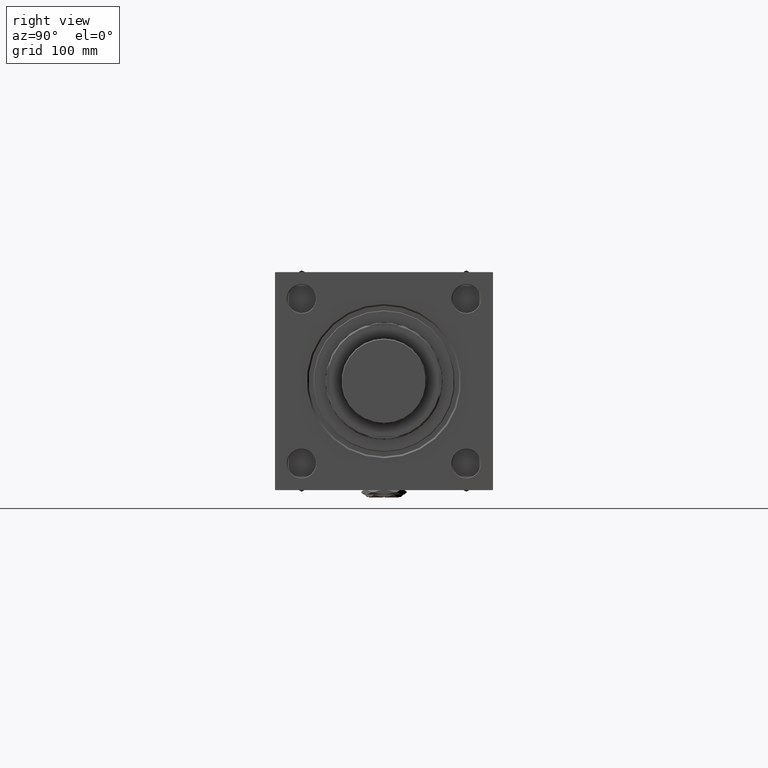
[diagram: clean part render]
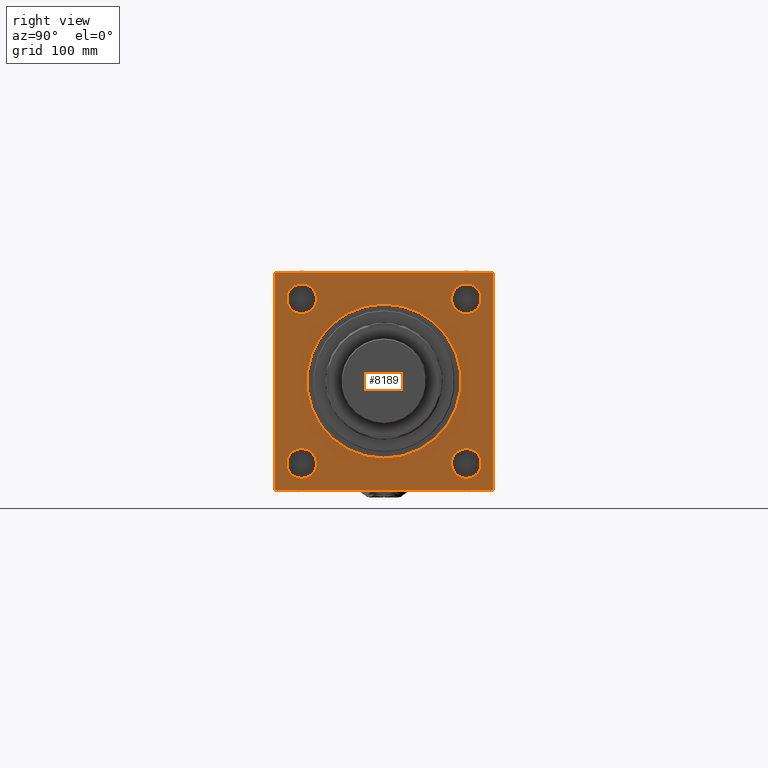
[diagram: same view with one face highlighted and labeled with its STEP entity id]
A machine part, right view. The second image highlights one B-rep face of the part: STEP entity #8189.
In plain terms, the highlighted planar face has unit normal (-1, 0, 0).
Its self-contained STEP definition (entity closure, byte-faithful):
#176 = EDGE_CURVE ( 'NONE', #10306, #6290, #25373, .T. ) ;
#322 = LINE ( 'NONE', #31910, #40194 ) ;
#452 = EDGE_LOOP ( 'NONE', ( #2316, #43651 ) ) ;
#486 = CIRCLE ( 'NONE', #51790, 13.99999999999995737 ) ;
#920 = VECTOR ( 'NONE', #41159, 1000.000000000000114 ) ;
#938 = CARTESIAN_POINT ( 'NONE',  ( 461.0000000000000000, 0.000000000000000000, 0.000000000000000000 ) ) ;
#1329 = DIRECTION ( 'NONE',  ( 0.000000000000000000, 0.000000000000000000, 1.000000000000000000 ) ) ;
#1713 = CARTESIAN_POINT ( 'NONE',  ( 461.0000000000000000, 77.44999999999998863, -77.45000000000001705 ) ) ;
#1892 = VERTEX_POINT ( 'NONE', #30097 ) ;
#2193 = CIRCLE ( 'NONE', #4779, 72.50000000000001421 ) ;
#2316 = ORIENTED_EDGE ( 'NONE', *, *, #31638, .T. ) ;
#2326 = CARTESIAN_POINT ( 'NONE',  ( 461.0000000000000000, -101.9999999999999858, -102.5000000000000284 ) ) ;
#2825 = ORIENTED_EDGE ( 'NONE', *, *, #3792, .T. ) ;
#3666 = VERTEX_POINT ( 'NONE', #40396 ) ;
#3792 = EDGE_CURVE ( 'NONE', #41597, #23987, #49764, .T. ) ;
#3818 = CARTESIAN_POINT ( 'NONE',  ( 461.0000000000000000, 0.000000000000000000, -72.50000000000001421 ) ) ;
#4104 = FACE_BOUND ( 'NONE', #13557, .T. ) ;
#4193 = VECTOR ( 'NONE', #28605, 1000.000000000000000 ) ;
#4495 = CARTESIAN_POINT ( 'NONE',  ( 461.0000000000000000, -77.45000000000005969, -91.45000000000013074 ) ) ;
#4629 = DIRECTION ( 'NONE',  ( 0.000000000000000000, 0.000000000000000000, 1.000000000000000000 ) ) ;
#4779 = AXIS2_PLACEMENT_3D ( 'NONE', #938, #13769, #45401 ) ;
#4821 = CARTESIAN_POINT ( 'NONE',  ( 461.0000000000000000, 77.44999999999998863, 77.45000000000001705 ) ) ;
#4843 = DIRECTION ( 'NONE',  ( 0.000000000000000000, 0.000000000000000000, 1.000000000000000000 ) ) ;
#4887 = FACE_BOUND ( 'NONE', #38222, .T. ) ;
#5149 = PLANE ( 'NONE',  #44395 ) ;
#5155 = CARTESIAN_POINT ( 'NONE',  ( 461.0000000000000000, -77.44999999999998863, 77.45000000000000284 ) ) ;
#6021 = VERTEX_POINT ( 'NONE', #41291 ) ;
#6290 = VERTEX_POINT ( 'NONE', #39896 ) ;
#6312 = VERTEX_POINT ( 'NONE', #34279 ) ;
#6405 = CARTESIAN_POINT ( 'NONE',  ( 461.0000000000000000, 102.5000000000000142, -102.0000000000000142 ) ) ;
#6594 = DIRECTION ( 'NONE',  ( 0.000000000000000000, 0.000000000000000000, -1.000000000000000000 ) ) ;
#6974 = ORIENTED_EDGE ( 'NONE', *, *, #46015, .T. ) ;
#7499 = CARTESIAN_POINT ( 'NONE',  ( 461.0000000000000000, -77.45000000000005969, -77.45000000000000284 ) ) ;
#7512 = AXIS2_PLACEMENT_3D ( 'NONE', #29111, #9043, #50546 ) ;
#8110 = FACE_BOUND ( 'NONE', #52007, .T. ) ;
#8189 = ADVANCED_FACE ( 'NONE', ( #4887, #4104, #12915, #8110, #9162, #49084 ), #5149, .F. ) ;
#8753 = CARTESIAN_POINT ( 'NONE',  ( 461.0000000000000000, 77.44999999999998863, 91.45000000000014495 ) ) ;
#8902 = VERTEX_POINT ( 'NONE', #47704 ) ;
#9043 = DIRECTION ( 'NONE',  ( -1.000000000000000000, 0.000000000000000000, 0.000000000000000000 ) ) ;
#9162 = FACE_BOUND ( 'NONE', #452, .T. ) ;
#9210 = EDGE_CURVE ( 'NONE', #1892, #45771, #15361, .T. ) ;
#9696 = DIRECTION ( 'NONE',  ( 0.000000000000000000, 0.000000000000000000, 1.000000000000000000 ) ) ;
#10306 = VERTEX_POINT ( 'NONE', #28613 ) ;
#10357 = CARTESIAN_POINT ( 'NONE',  ( 461.0000000000000000, 102.0000000000000142, 102.5000000000000142 ) ) ;
#10391 = AXIS2_PLACEMENT_3D ( 'NONE', #41251, #38018, #1329 ) ;
#10429 = DIRECTION ( 'NONE',  ( -0.000000000000000000, -0.7071067811865573427, -0.7071067811865376918 ) ) ;
#12267 = VERTEX_POINT ( 'NONE', #4495 ) ;
#12422 = LINE ( 'NONE', #15646, #21475 ) ;
#12706 = VECTOR ( 'NONE', #10429, 1000.000000000000114 ) ;
#12915 = FACE_BOUND ( 'NONE', #52400, .T. ) ;
#13096 = EDGE_CURVE ( 'NONE', #45771, #1892, #24040, .T. ) ;
#13557 = EDGE_LOOP ( 'NONE', ( #36745, #25536 ) ) ;
#13769 = DIRECTION ( 'NONE',  ( -1.000000000000000000, 0.000000000000000000, 0.000000000000000000 ) ) ;
#14408 = EDGE_CURVE ( 'NONE', #46432, #6021, #27189, .T. ) ;
#14414 = VERTEX_POINT ( 'NONE', #10357 ) ;
#14546 = ORIENTED_EDGE ( 'NONE', *, *, #18208, .T. ) ;
#15361 = CIRCLE ( 'NONE', #51265, 14.00000000000012434 ) ;
#15387 = CARTESIAN_POINT ( 'NONE',  ( 461.0000000000000000, -102.5000000000000000, -102.0000000000000284 ) ) ;
#15610 = ORIENTED_EDGE ( 'NONE', *, *, #14408, .F. ) ;
#15646 = CARTESIAN_POINT ( 'NONE',  ( 461.0000000000000000, 102.5000000000000142, 102.5000000000000142 ) ) ;
#16144 = ORIENTED_EDGE ( 'NONE', *, *, #13096, .T. ) ;
#16441 = DIRECTION ( 'NONE',  ( 0.000000000000000000, -1.000000000000000000, -1.353930517835556973E-16 ) ) ;
#16878 = CARTESIAN_POINT ( 'NONE',  ( 461.0000000000000000, 77.44999999999998863, 77.45000000000001705 ) ) ;
#17003 = VERTEX_POINT ( 'NONE', #3818 ) ;
#17424 = ORIENTED_EDGE ( 'NONE', *, *, #27067, .T. ) ;
#18208 = EDGE_CURVE ( 'NONE', #44506, #12267, #21686, .T. ) ;
#18611 = EDGE_LOOP ( 'NONE', ( #2825, #29338, #47809, #27563, #15610, #28535, #6974, #29221 ) ) ;
#19189 = CIRCLE ( 'NONE', #36312, 14.00000000000012434 ) ;
#19220 = EDGE_CURVE ( 'NONE', #12267, #44506, #33478, .T. ) ;
#20042 = LINE ( 'NONE', #44435, #4193 ) ;
#20686 = EDGE_CURVE ( 'NONE', #46432, #14414, #25064, .T. ) ;
#20816 = DIRECTION ( 'NONE',  ( 0.000000000000000000, -1.353930517835556727E-16, -1.000000000000000000 ) ) ;
#21133 = DIRECTION ( 'NONE',  ( -1.000000000000000000, 0.000000000000000000, 0.000000000000000000 ) ) ;
#21475 = VECTOR ( 'NONE', #16441, 1000.000000000000000 ) ;
#21522 = DIRECTION ( 'NONE',  ( 0.000000000000000000, 0.000000000000000000, 1.000000000000000000 ) ) ;
#21686 = CIRCLE ( 'NONE', #28531, 14.00000000000012434 ) ;
#22445 = VERTEX_POINT ( 'NONE', #40420 ) ;
#23819 = DIRECTION ( 'NONE',  ( 0.000000000000000000, 0.000000000000000000, 1.000000000000000000 ) ) ;
#23987 = VERTEX_POINT ( 'NONE', #15387 ) ;
#24040 = CIRCLE ( 'NONE', #25751, 14.00000000000012434 ) ;
#25064 = LINE ( 'NONE', #33367, #920 ) ;
#25373 = CIRCLE ( 'NONE', #39075, 13.99999999999995737 ) ;
#25387 = CARTESIAN_POINT ( 'NONE',  ( 461.0000000000000000, 102.5000000000000142, 102.0000000000000142 ) ) ;
#25536 = ORIENTED_EDGE ( 'NONE', *, *, #32089, .T. ) ;
#25617 = CARTESIAN_POINT ( 'NONE',  ( 461.0000000000000000, -102.4999999999999716, 102.4999999999999858 ) ) ;
#25751 = AXIS2_PLACEMENT_3D ( 'NONE', #4821, #21133, #33459 ) ;
#27067 = EDGE_CURVE ( 'NONE', #22445, #3666, #46489, .T. ) ;
#27189 = LINE ( 'NONE', #31747, #35203 ) ;
#27539 = CARTESIAN_POINT ( 'NONE',  ( 461.0000000000000000, -102.4999999999999716, 101.9999999999999289 ) ) ;
#27563 = ORIENTED_EDGE ( 'NONE', *, *, #42050, .T. ) ;
#28314 = ORIENTED_EDGE ( 'NONE', *, *, #19220, .T. ) ;
#28531 = AXIS2_PLACEMENT_3D ( 'NONE', #7499, #28632, #23819 ) ;
#28535 = ORIENTED_EDGE ( 'NONE', *, *, #20686, .T. ) ;
#28605 = DIRECTION ( 'NONE',  ( 0.000000000000000000, -1.000000000000000000, -1.353930517835556727E-16 ) ) ;
#28613 = CARTESIAN_POINT ( 'NONE',  ( 461.0000000000000000, -77.44999999999998863, 63.45000000000004547 ) ) ;
#28632 = DIRECTION ( 'NONE',  ( -1.000000000000000000, 0.000000000000000000, 0.000000000000000000 ) ) ;
#29111 = CARTESIAN_POINT ( 'NONE',  ( 461.0000000000000000, 0.000000000000000000, 0.000000000000000000 ) ) ;
#29221 = ORIENTED_EDGE ( 'NONE', *, *, #42947, .T. ) ;
#29338 = ORIENTED_EDGE ( 'NONE', *, *, #49911, .T. ) ;
#29771 = VECTOR ( 'NONE', #31537, 1000.000000000000114 ) ;
#29787 = EDGE_CURVE ( 'NONE', #3666, #22445, #19189, .T. ) ;
#30097 = CARTESIAN_POINT ( 'NONE',  ( 461.0000000000000000, 77.44999999999998863, 63.44999999999989626 ) ) ;
#30592 = DIRECTION ( 'NONE',  ( -1.000000000000000000, 0.000000000000000000, 0.000000000000000000 ) ) ;
#31037 = AXIS2_PLACEMENT_3D ( 'NONE', #1713, #30592, #50729 ) ;
#31408 = CIRCLE ( 'NONE', #7512, 72.50000000000001421 ) ;
#31537 = DIRECTION ( 'NONE',  ( -0.000000000000000000, 0.7071067811865474617, 0.7071067811865474617 ) ) ;
#31638 = EDGE_CURVE ( 'NONE', #17003, #50505, #2193, .T. ) ;
#31747 = CARTESIAN_POINT ( 'NONE',  ( 461.0000000000000000, 102.5000000000000142, 102.5000000000000142 ) ) ;
#31910 = CARTESIAN_POINT ( 'NONE',  ( 461.0000000000000000, -101.9999999999999858, -102.5000000000000284 ) ) ;
#32089 = EDGE_CURVE ( 'NONE', #6290, #10306, #486, .T. ) ;
#32786 = CARTESIAN_POINT ( 'NONE',  ( 461.0000000000000000, -77.44999999999998863, 77.45000000000000284 ) ) ;
#32986 = DIRECTION ( 'NONE',  ( -1.000000000000000000, 0.000000000000000000, 0.000000000000000000 ) ) ;
#33206 = DIRECTION ( 'NONE',  ( -1.000000000000000000, 0.000000000000000000, 0.000000000000000000 ) ) ;
#33367 = CARTESIAN_POINT ( 'NONE',  ( 461.0000000000000000, 102.0000000000000142, 102.5000000000000142 ) ) ;
#33459 = DIRECTION ( 'NONE',  ( 0.000000000000000000, 0.000000000000000000, 1.000000000000000000 ) ) ;
#33478 = CIRCLE ( 'NONE', #10391, 14.00000000000012434 ) ;
#34091 = CARTESIAN_POINT ( 'NONE',  ( 461.0000000000000000, 77.44999999999998863, -77.45000000000001705 ) ) ;
#34279 = CARTESIAN_POINT ( 'NONE',  ( 461.0000000000000000, -101.9999999999999005, 102.4999999999999858 ) ) ;
#35203 = VECTOR ( 'NONE', #6594, 1000.000000000000000 ) ;
#36083 = ORIENTED_EDGE ( 'NONE', *, *, #9210, .T. ) ;
#36312 = AXIS2_PLACEMENT_3D ( 'NONE', #34091, #46945, #21522 ) ;
#36561 = DIRECTION ( 'NONE',  ( 0.000000000000000000, 0.000000000000000000, 1.000000000000000000 ) ) ;
#36745 = ORIENTED_EDGE ( 'NONE', *, *, #176, .T. ) ;
#37266 = ORIENTED_EDGE ( 'NONE', *, *, #29787, .T. ) ;
#37566 = CARTESIAN_POINT ( 'NONE',  ( 461.0000000000000000, -102.4999999999999716, 101.9999999999999289 ) ) ;
#38018 = DIRECTION ( 'NONE',  ( -1.000000000000000000, 0.000000000000000000, 0.000000000000000000 ) ) ;
#38037 = LINE ( 'NONE', #27539, #12706 ) ;
#38222 = EDGE_LOOP ( 'NONE', ( #36083, #16144 ) ) ;
#39075 = AXIS2_PLACEMENT_3D ( 'NONE', #32786, #49939, #36561 ) ;
#39896 = CARTESIAN_POINT ( 'NONE',  ( 461.0000000000000000, -77.44999999999998863, 91.44999999999996021 ) ) ;
#40082 = EDGE_CURVE ( 'NONE', #50505, #17003, #31408, .T. ) ;
#40194 = VECTOR ( 'NONE', #48272, 999.9999999999998863 ) ;
#40396 = CARTESIAN_POINT ( 'NONE',  ( 461.0000000000000000, 77.44999999999998863, -91.45000000000014495 ) ) ;
#40420 = CARTESIAN_POINT ( 'NONE',  ( 461.0000000000000000, 77.44999999999998863, -63.44999999999989626 ) ) ;
#40532 = CARTESIAN_POINT ( 'NONE',  ( 461.0000000000000000, -77.45000000000005969, -63.44999999999988205 ) ) ;
#41159 = DIRECTION ( 'NONE',  ( 0.000000000000000000, -0.7071067811865474617, 0.7071067811865474617 ) ) ;
#41251 = CARTESIAN_POINT ( 'NONE',  ( 461.0000000000000000, -77.45000000000005969, -77.45000000000000284 ) ) ;
#41291 = CARTESIAN_POINT ( 'NONE',  ( 461.0000000000000000, 102.5000000000000142, -102.0000000000000142 ) ) ;
#41597 = VERTEX_POINT ( 'NONE', #37566 ) ;
#42050 = EDGE_CURVE ( 'NONE', #8902, #6021, #42830, .T. ) ;
#42830 = LINE ( 'NONE', #6405, #29771 ) ;
#42947 = EDGE_CURVE ( 'NONE', #6312, #41597, #38037, .T. ) ;
#43651 = ORIENTED_EDGE ( 'NONE', *, *, #40082, .T. ) ;
#44238 = VECTOR ( 'NONE', #20816, 1000.000000000000000 ) ;
#44395 = AXIS2_PLACEMENT_3D ( 'NONE', #49340, #32986, #4629 ) ;
#44435 = CARTESIAN_POINT ( 'NONE',  ( 461.0000000000000000, 102.5000000000000142, -102.5000000000000142 ) ) ;
#44506 = VERTEX_POINT ( 'NONE', #40532 ) ;
#44724 = VERTEX_POINT ( 'NONE', #2326 ) ;
#45401 = DIRECTION ( 'NONE',  ( 0.000000000000000000, 0.000000000000000000, 1.000000000000000000 ) ) ;
#45771 = VERTEX_POINT ( 'NONE', #8753 ) ;
#45859 = DIRECTION ( 'NONE',  ( -1.000000000000000000, 0.000000000000000000, 0.000000000000000000 ) ) ;
#46015 = EDGE_CURVE ( 'NONE', #14414, #6312, #12422, .T. ) ;
#46432 = VERTEX_POINT ( 'NONE', #25387 ) ;
#46489 = CIRCLE ( 'NONE', #31037, 14.00000000000012434 ) ;
#46945 = DIRECTION ( 'NONE',  ( -1.000000000000000000, 0.000000000000000000, 0.000000000000000000 ) ) ;
#47704 = CARTESIAN_POINT ( 'NONE',  ( 461.0000000000000000, 102.0000000000000142, -102.5000000000000142 ) ) ;
#47809 = ORIENTED_EDGE ( 'NONE', *, *, #47960, .F. ) ;
#47960 = EDGE_CURVE ( 'NONE', #8902, #44724, #20042, .T. ) ;
#48272 = DIRECTION ( 'NONE',  ( 0.000000000000000000, 0.7071067811865574537, -0.7071067811865376918 ) ) ;
#49084 = FACE_OUTER_BOUND ( 'NONE', #18611, .T. ) ;
#49340 = CARTESIAN_POINT ( 'NONE',  ( 461.0000000000000000, 0.000000000000000000, 0.000000000000000000 ) ) ;
#49764 = LINE ( 'NONE', #25617, #44238 ) ;
#49911 = EDGE_CURVE ( 'NONE', #23987, #44724, #322, .T. ) ;
#49939 = DIRECTION ( 'NONE',  ( -1.000000000000000000, 0.000000000000000000, 0.000000000000000000 ) ) ;
#50505 = VERTEX_POINT ( 'NONE', #51731 ) ;
#50546 = DIRECTION ( 'NONE',  ( 0.000000000000000000, 0.000000000000000000, 1.000000000000000000 ) ) ;
#50729 = DIRECTION ( 'NONE',  ( 0.000000000000000000, 0.000000000000000000, 1.000000000000000000 ) ) ;
#51265 = AXIS2_PLACEMENT_3D ( 'NONE', #16878, #33206, #4843 ) ;
#51731 = CARTESIAN_POINT ( 'NONE',  ( 461.0000000000000000, 8.878689293818310863E-15, 72.50000000000001421 ) ) ;
#51790 = AXIS2_PLACEMENT_3D ( 'NONE', #5155, #45859, #9696 ) ;
#52007 = EDGE_LOOP ( 'NONE', ( #37266, #17424 ) ) ;
#52400 = EDGE_LOOP ( 'NONE', ( #28314, #14546 ) ) ;